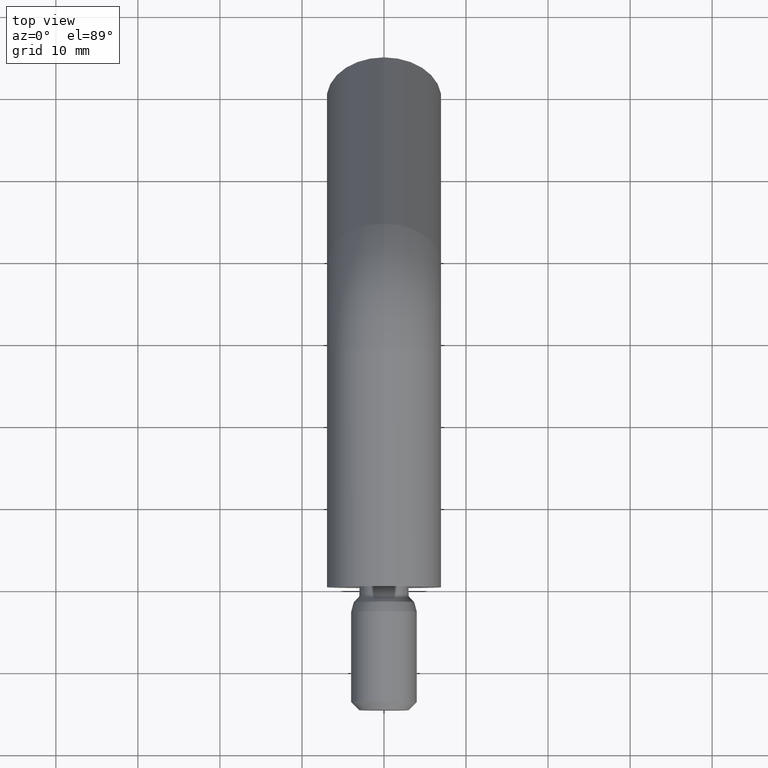
[diagram: clean part render]
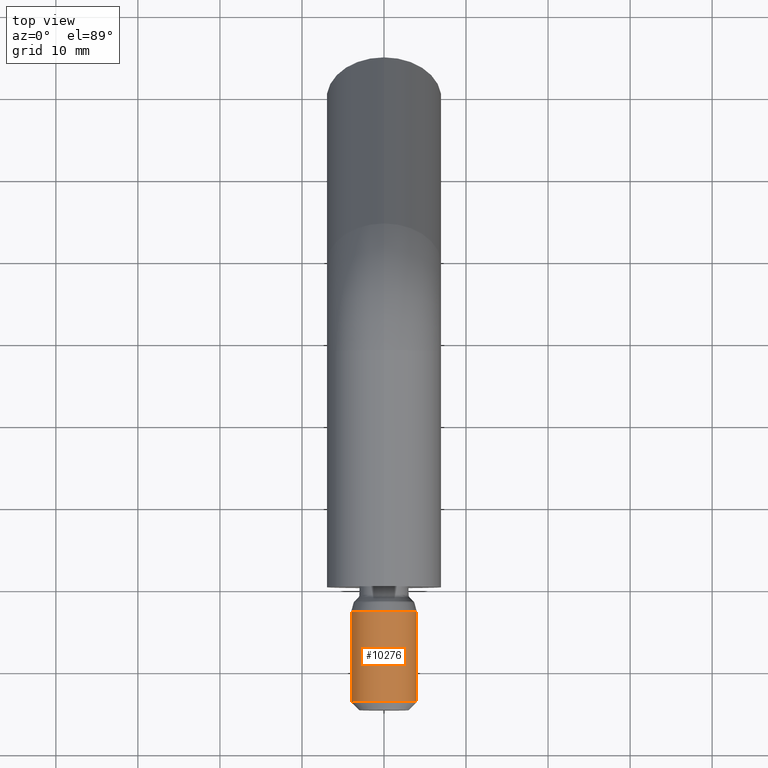
[diagram: same view with one face highlighted and labeled with its STEP entity id]
A machine part, top view. The second image highlights one B-rep face of the part: STEP entity #10276.
In plain terms, the highlighted cylindrical surface (edge-blend (fillet) strip) has radius 4 mm, axis along (-0, 1, -0).
Its self-contained STEP definition (entity closure, byte-faithful):
#1 = EDGE_CURVE ( 'NONE', #4466, #9406, #8992, .T. ) ;
#400 = DIRECTION ( 'NONE',  ( -1.156482317317871700E-016, 1.000000000000000000, -0.0000000000000000000 ) ) ;
#782 = VECTOR ( 'NONE', #3477, 1000.000000000000000 ) ;
#1030 = ORIENTED_EDGE ( 'NONE', *, *, #4480, .T. ) ;
#1422 = CARTESIAN_POINT ( 'NONE',  ( -4.000000000000001800, -3.000000000000000000, 0.0000000000000000000 ) ) ;
#1654 = CIRCLE ( 'NONE', #10526, 4.000000000000000900 ) ;
#1866 = EDGE_LOOP ( 'NONE', ( #1030, #5594, #7060, #11152 ) ) ;
#2466 = CARTESIAN_POINT ( 'NONE',  ( 3.469446951953613700E-016, -2.999999999999999600, 0.0000000000000000000 ) ) ;
#2617 = CARTESIAN_POINT ( 'NONE',  ( -3.999999999999999100, -13.99999999999999300, 0.0000000000000000000 ) ) ;
#2879 = CARTESIAN_POINT ( 'NONE',  ( 0.0000000000000000000, 0.0000000000000000000, 0.0000000000000000000 ) ) ;
#3407 = AXIS2_PLACEMENT_3D ( 'NONE', #2466, #7748, #3569 ) ;
#3477 = DIRECTION ( 'NONE',  ( -1.156482317317871500E-016, 1.000000000000000000, -0.0000000000000000000 ) ) ;
#3569 = DIRECTION ( 'NONE',  ( -1.000000000000000000, -1.084202172485503900E-016, 0.0000000000000000000 ) ) ;
#3596 = CARTESIAN_POINT ( 'NONE',  ( 1.619075244245019200E-015, -13.99999999999999300, 0.0000000000000000000 ) ) ;
#3843 = CYLINDRICAL_SURFACE ( 'NONE', #11549, 4.000000000000000900 ) ;
#4069 = DIRECTION ( 'NONE',  ( -1.000000000000000000, -1.156482317317871700E-016, 0.0000000000000000000 ) ) ;
#4368 = CARTESIAN_POINT ( 'NONE',  ( 4.000000000000000900, 4.625929269271487900E-016, 4.898587196589413800E-016 ) ) ;
#4447 = DIRECTION ( 'NONE',  ( -1.156482317317871500E-016, 1.000000000000000000, -0.0000000000000000000 ) ) ;
#4466 = VERTEX_POINT ( 'NONE', #2617 ) ;
#4480 = EDGE_CURVE ( 'NONE', #4466, #10464, #1654, .T. ) ;
#5019 = DIRECTION ( 'NONE',  ( -1.156482317317871500E-016, 1.000000000000000000, -0.0000000000000000000 ) ) ;
#5378 = CARTESIAN_POINT ( 'NONE',  ( -4.000000000000000900, -4.625929269271487900E-016, 0.0000000000000000000 ) ) ;
#5594 = ORIENTED_EDGE ( 'NONE', *, *, #7761, .T. ) ;
#6186 = LINE ( 'NONE', #4368, #782 ) ;
#6401 = VECTOR ( 'NONE', #4447, 1000.000000000000000 ) ;
#6940 = FACE_OUTER_BOUND ( 'NONE', #1866, .T. ) ;
#7055 = VERTEX_POINT ( 'NONE', #11184 ) ;
#7060 = ORIENTED_EDGE ( 'NONE', *, *, #11920, .F. ) ;
#7684 = DIRECTION ( 'NONE',  ( -1.000000000000000000, 0.0000000000000000000, 0.0000000000000000000 ) ) ;
#7734 = CIRCLE ( 'NONE', #3407, 4.000000000000001800 ) ;
#7748 = DIRECTION ( 'NONE',  ( -1.156482317317871500E-016, 1.000000000000000000, -0.0000000000000000000 ) ) ;
#7761 = EDGE_CURVE ( 'NONE', #10464, #7055, #6186, .T. ) ;
#8992 = LINE ( 'NONE', #5378, #6401 ) ;
#9406 = VERTEX_POINT ( 'NONE', #1422 ) ;
#10276 = ADVANCED_FACE ( 'NONE', ( #6940 ), #3843, .T. ) ;
#10464 = VERTEX_POINT ( 'NONE', #12499 ) ;
#10526 = AXIS2_PLACEMENT_3D ( 'NONE', #3596, #400, #7684 ) ;
#11152 = ORIENTED_EDGE ( 'NONE', *, *, #1, .F. ) ;
#11184 = CARTESIAN_POINT ( 'NONE',  ( 4.000000000000001800, -2.999999999999999100, 4.898587196589413800E-016 ) ) ;
#11549 = AXIS2_PLACEMENT_3D ( 'NONE', #2879, #5019, #4069 ) ;
#11920 = EDGE_CURVE ( 'NONE', #9406, #7055, #7734, .T. ) ;
#12499 = CARTESIAN_POINT ( 'NONE',  ( 4.000000000000002700, -13.99999999999999300, 4.898587196589414800E-016 ) ) ;